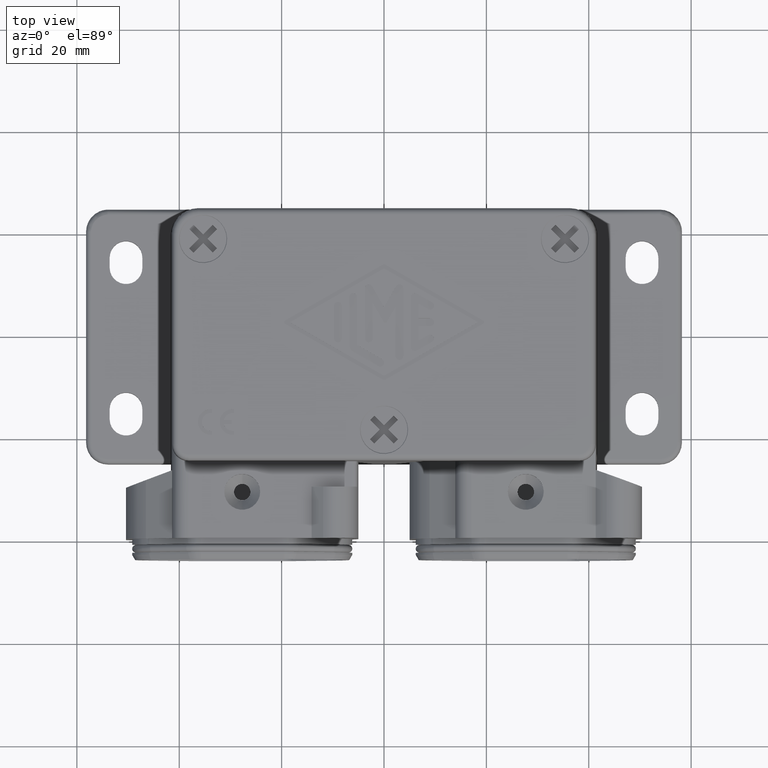
[diagram: clean part render]
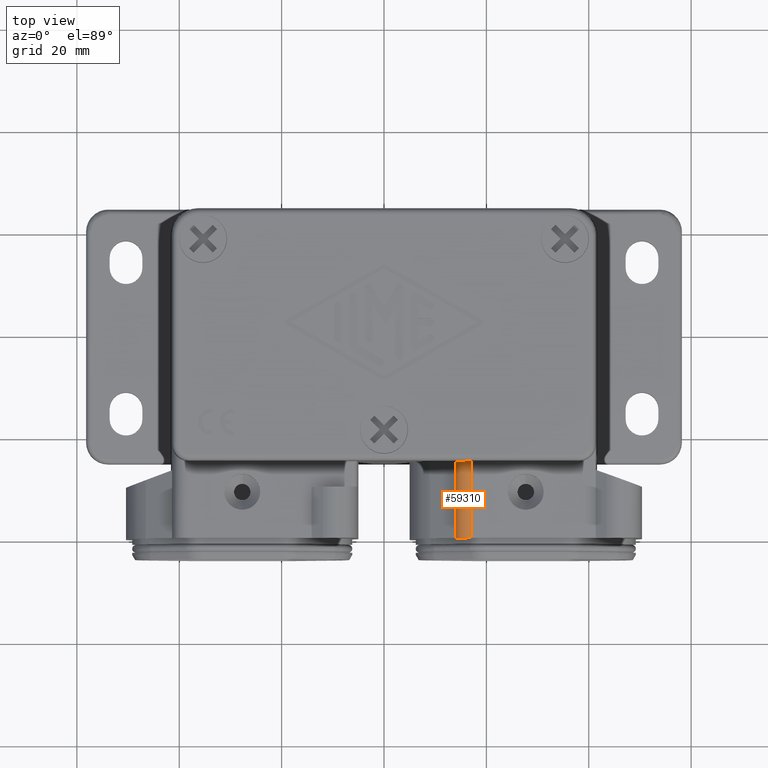
[diagram: same view with one face highlighted and labeled with its STEP entity id]
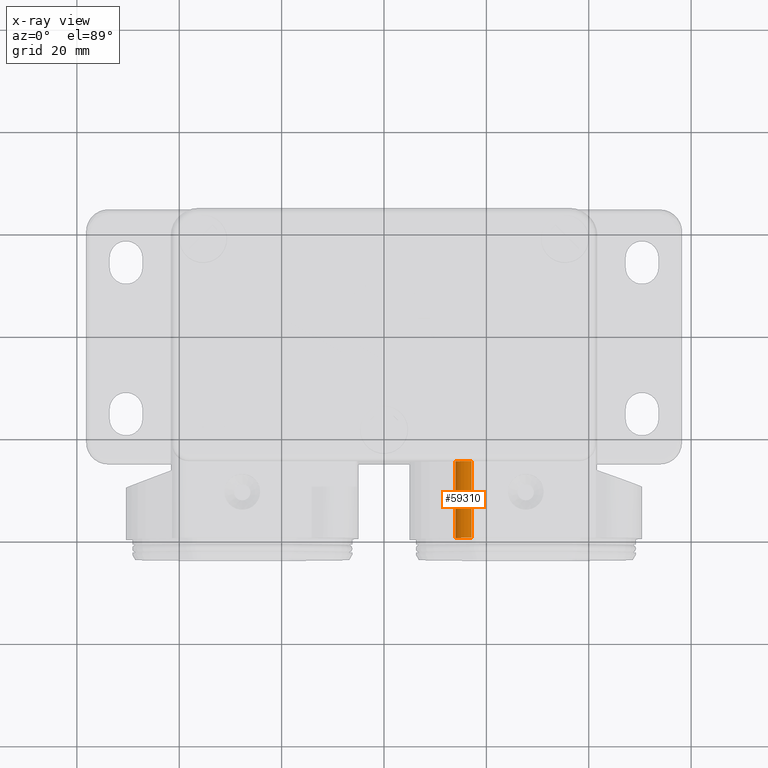
[diagram: x-ray of the same camera — body ghosted, the highlighted face saturated]
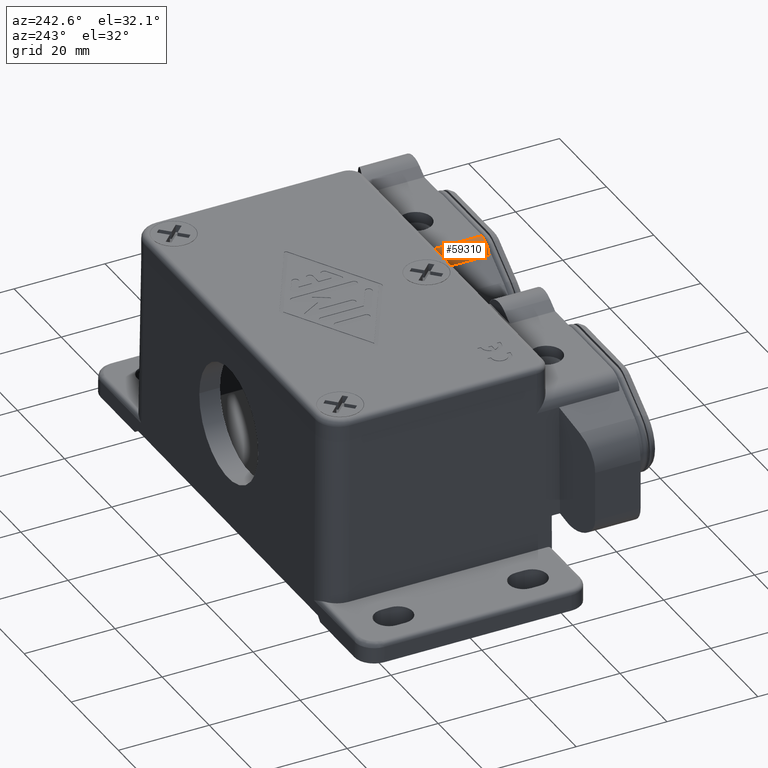
[diagram: same view with one face highlighted and labeled with its STEP entity id]
A machine part, top view. The second image highlights one B-rep face of the part: STEP entity #59310.
The next image is the same camera in x-ray: the body ghosted, the highlighted face saturated — about 0% of this face is hidden behind the body in this view.
A second angle (auxiliary view) of the same face is appended — the face is thin or edge-on in the first view.
In plain terms, the highlighted cylindrical surface (edge-blend (fillet) strip) has radius 3.2 mm, axis along (0, 1, 0).
Its self-contained STEP definition (entity closure, byte-faithful):
#14680=CARTESIAN_POINT('',(-44.9180220899012,-4.,13.900000677173));
#14690=VERTEX_POINT('',#14680);
#14720=CARTESIAN_POINT('',(-44.9180220899012,-4.,13.900000677173));
#14730=DIRECTION('',(0.,-1.,0.));
#14740=VECTOR('',#14730,1.);
#14750=LINE('',#14720,#14740);
#14760=CARTESIAN_POINT('',(-44.9180220899012,-19.,13.900000677173));
#14770=VERTEX_POINT('',#14760);
#14780=EDGE_CURVE('',#14690,#14770,#14750,.T.);
#40030=CARTESIAN_POINT('',(-44.9180220899012,-19.,10.700000677173));
#40040=DIRECTION('',(0.,-1.,0.));
#40050=DIRECTION('',(-1.,0.,0.));
#40060=AXIS2_PLACEMENT_3D('',#40030,#40040,#40050);
#40070=CIRCLE('',#40060,3.2);
#40080=CARTESIAN_POINT('',(-41.7504378634043,-19.,11.1543245352825));
#40090=VERTEX_POINT('',#40080);
#40100=EDGE_CURVE('',#40090,#14770,#40070,.T.);
#44970=CARTESIAN_POINT('',(-41.7504378634043,-4.,11.1543245352825));
#44980=DIRECTION('',(0.,-1.,0.));
#44990=VECTOR('',#44980,1.);
#45000=LINE('',#44970,#44990);
#45010=CARTESIAN_POINT('',(-41.7504378634043,-4.,11.1543245352825));
#45020=VERTEX_POINT('',#45010);
#45030=EDGE_CURVE('',#45020,#40090,#45000,.T.);
#59140=CARTESIAN_POINT('',(-44.9180220899012,-4.,10.700000677173));
#59150=DIRECTION('',(0.,-1.,0.));
#59160=DIRECTION('',(-1.,0.,0.));
#59170=AXIS2_PLACEMENT_3D('',#59140,#59150,#59160);
#59180=CYLINDRICAL_SURFACE('',#59170,3.2);
#59190=ORIENTED_EDGE('',*,*,#40100,.F.);
#59200=ORIENTED_EDGE('',*,*,#14780,.T.);
#59210=CARTESIAN_POINT('',(-44.9180220899012,-4.,10.700000677173));
#59220=DIRECTION('',(0.,-1.,0.));
#59230=DIRECTION('',(-1.,0.,0.));
#59240=AXIS2_PLACEMENT_3D('',#59210,#59220,#59230);
#59250=CIRCLE('',#59240,3.2);
#59260=EDGE_CURVE('',#45020,#14690,#59250,.T.);
#59270=ORIENTED_EDGE('',*,*,#59260,.T.);
#59280=ORIENTED_EDGE('',*,*,#45030,.F.);
#59290=EDGE_LOOP('',(#59280,#59270,#59200,#59190));
#59300=FACE_OUTER_BOUND('',#59290,.T.);
#59310=ADVANCED_FACE('',(#59300),#59180,.T.);